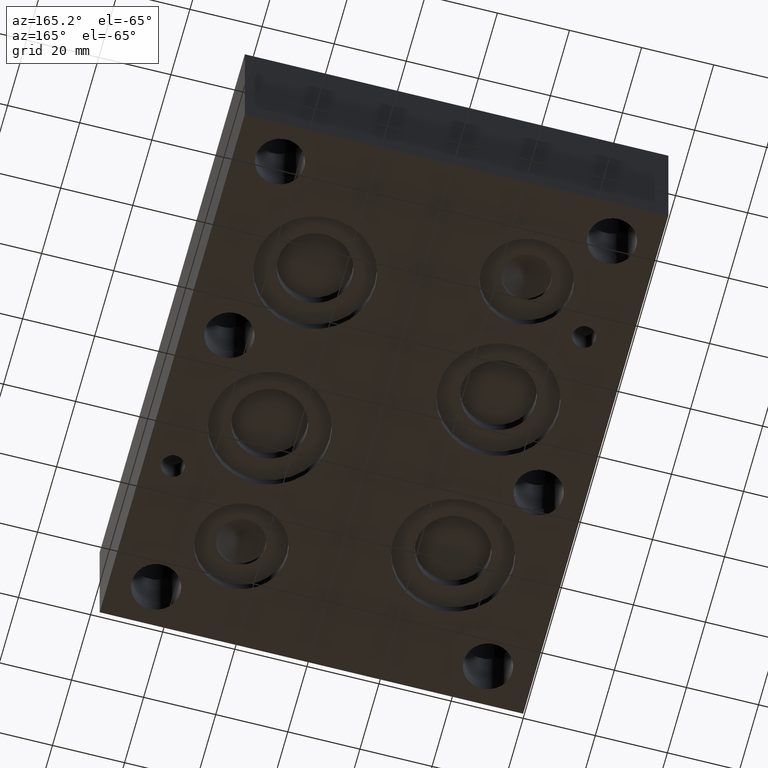
[diagram: clean part render]
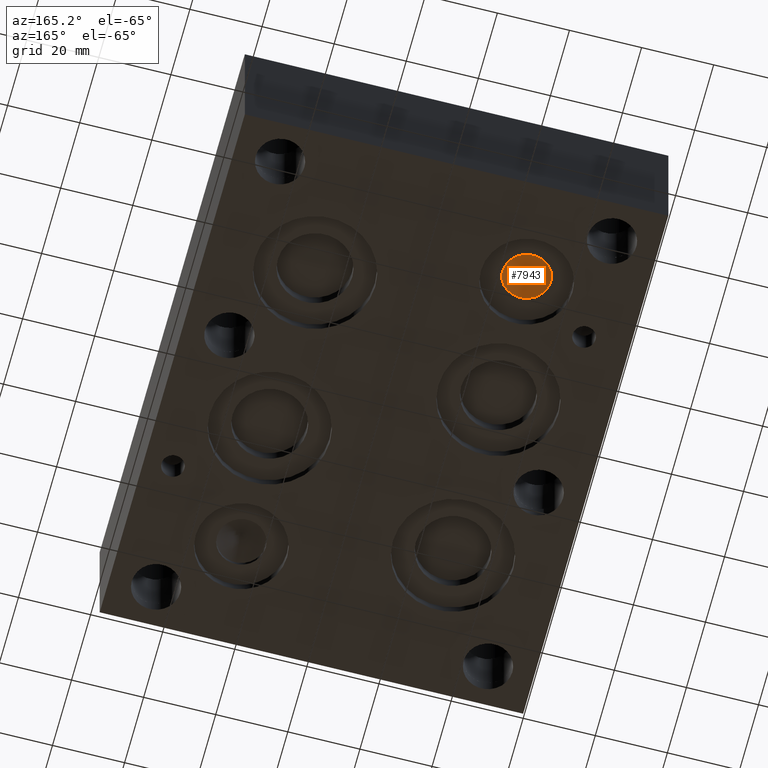
[diagram: same view with one face highlighted and labeled with its STEP entity id]
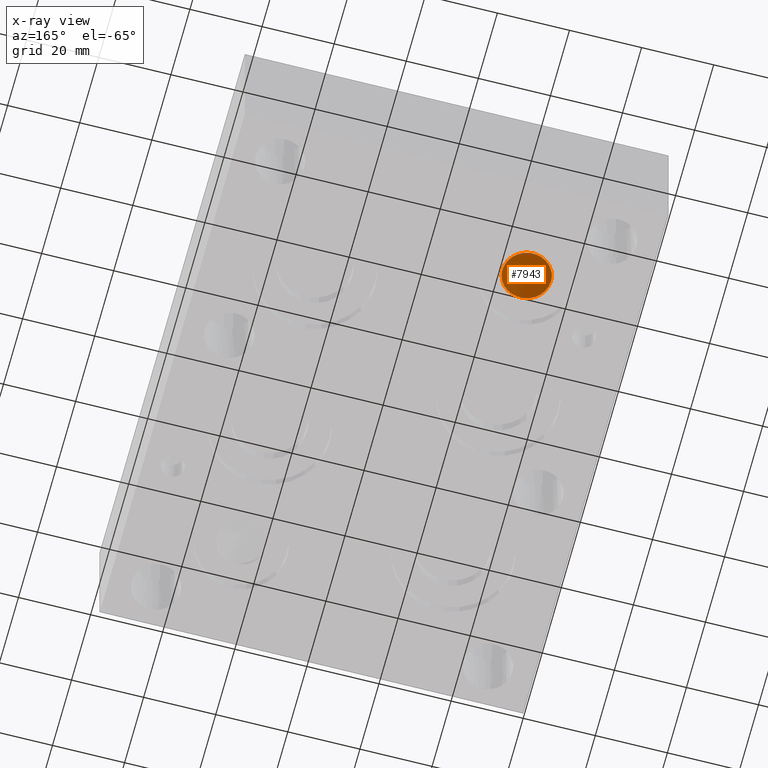
[diagram: x-ray of the same camera — body ghosted, the highlighted face saturated]
A machine part, auxiliary view. The second image highlights one B-rep face of the part: STEP entity #7943.
The next image is the same camera in x-ray: the body ghosted, the highlighted face saturated — about 0% of this face is hidden behind the body in this view.
In plain terms, the highlighted conical surface has half-angle 60 deg.
Its self-contained STEP definition (entity closure, byte-faithful):
#16=CONICAL_SURFACE('',#8309,3.37185,1.0471975511966);
#59=CIRCLE('',#8310,6.7437);
#914=FACE_OUTER_BOUND('',#1375,.T.);
#1375=EDGE_LOOP('',(#6716,#6717,#6718));
#2201=LINE('',#13304,#2980);
#2980=VECTOR('',#9737,3.37185);
#3672=VERTEX_POINT('',#13301);
#3673=VERTEX_POINT('',#13303);
#4710=EDGE_CURVE('',#3672,#3672,#59,.T.);
#4711=EDGE_CURVE('',#3672,#3673,#2201,.T.);
#6716=ORIENTED_EDGE('',*,*,#4710,.T.);
#6717=ORIENTED_EDGE('',*,*,#4711,.T.);
#6718=ORIENTED_EDGE('',*,*,#4711,.F.);
#7943=ADVANCED_FACE('',(#914),#16,.F.);
#8309=AXIS2_PLACEMENT_3D('',#13300,#9733,#9734);
#8310=AXIS2_PLACEMENT_3D('',#13302,#9735,#9736);
#9733=DIRECTION('center_axis',(0.,0.,-1.));
#9734=DIRECTION('ref_axis',(1.,0.,0.));
#9735=DIRECTION('center_axis',(0.,0.,-1.));
#9736=DIRECTION('ref_axis',(1.,0.,0.));
#9737=DIRECTION('',(0.866025403784439,-1.06057523872491E-16,0.5));
#13300=CARTESIAN_POINT('Origin',(31.75,123.8377,5.84021850516704));
#13301=CARTESIAN_POINT('',(25.0063,123.8377,3.89348));
#13302=CARTESIAN_POINT('Origin',(31.75,123.8377,3.89348));
#13303=CARTESIAN_POINT('',(31.75,123.8377,7.78695701033408));
#13304=CARTESIAN_POINT('',(28.37815,123.8377,5.84021850516704));